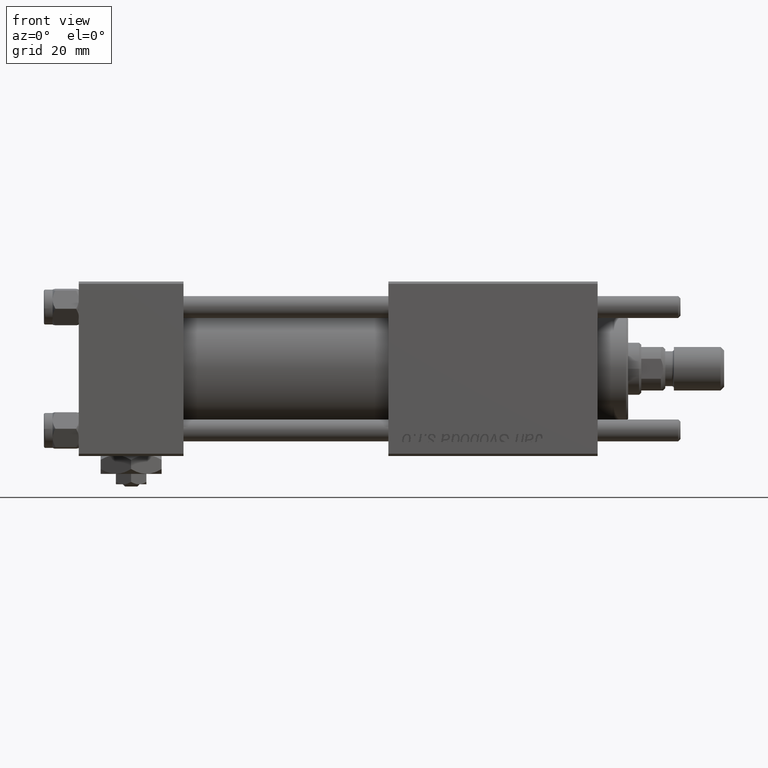
[diagram: clean part render]
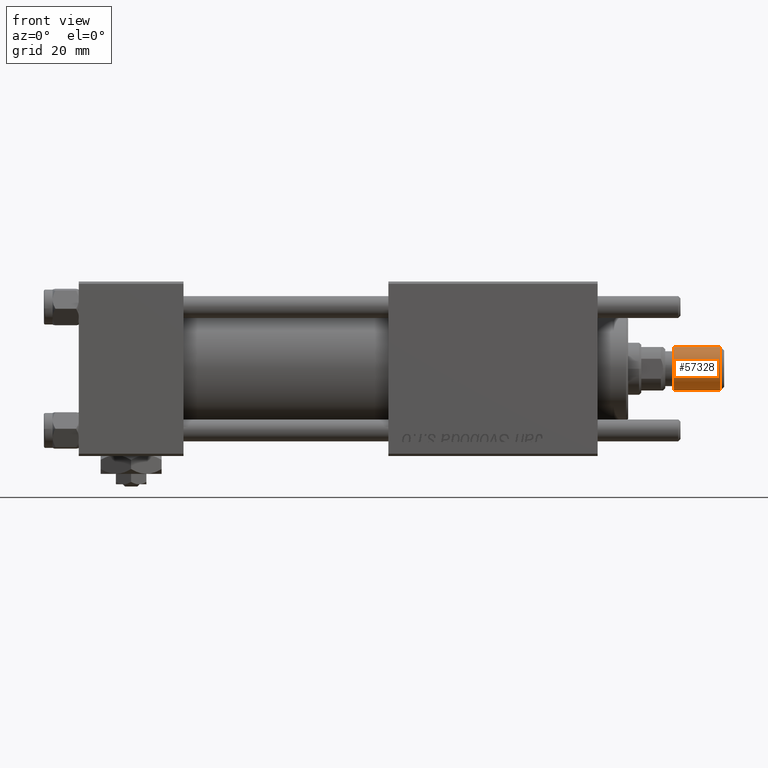
[diagram: same view with one face highlighted and labeled with its STEP entity id]
A machine part, front view. The second image highlights one B-rep face of the part: STEP entity #57328.
In plain terms, the highlighted cylindrical surface (edge-blend (fillet) strip) has radius 5 mm, axis along (1, -0, -0).
Its self-contained STEP definition (entity closure, byte-faithful):
#1119 = EDGE_CURVE ( 'NONE', #56349, #33280, #26284, .T. ) ;
#1937 = CARTESIAN_POINT ( 'NONE',  ( -5.000000000000000000, 0.000000000000000000, 0.8000000000000020428 ) ) ;
#6209 = EDGE_CURVE ( 'NONE', #15401, #14057, #33258, .T. ) ;
#6597 = VECTOR ( 'NONE', #18395, 1000.000000000000000 ) ;
#6815 = DIRECTION ( 'NONE',  ( 0.000000000000000000, 0.000000000000000000, 1.000000000000000000 ) ) ;
#8549 = LINE ( 'NONE', #45600, #6597 ) ;
#9655 = CARTESIAN_POINT ( 'NONE',  ( -5.000000000000000000, 0.000000000000000000, 11.50000000000000000 ) ) ;
#10078 = AXIS2_PLACEMENT_3D ( 'NONE', #32808, #6815, #37899 ) ;
#11149 = FACE_OUTER_BOUND ( 'NONE', #12446, .T. ) ;
#12446 = EDGE_LOOP ( 'NONE', ( #56712, #27717, #27109, #23630 ) ) ;
#14057 = VERTEX_POINT ( 'NONE', #53708 ) ;
#14696 = AXIS2_PLACEMENT_3D ( 'NONE', #16479, #48464, #52372 ) ;
#15401 = VERTEX_POINT ( 'NONE', #1937 ) ;
#15600 = CARTESIAN_POINT ( 'NONE',  ( 5.000000000000000000, 6.123233995736766282E-16, 11.50000000000000000 ) ) ;
#16479 = CARTESIAN_POINT ( 'NONE',  ( 0.000000000000000000, 0.000000000000000000, 11.50000000000000000 ) ) ;
#17201 = EDGE_CURVE ( 'NONE', #33280, #14057, #8549, .T. ) ;
#18395 = DIRECTION ( 'NONE',  ( -0.000000000000000000, -0.000000000000000000, -1.000000000000000000 ) ) ;
#21632 = DIRECTION ( 'NONE',  ( -0.000000000000000000, -0.000000000000000000, 1.000000000000000000 ) ) ;
#23630 = ORIENTED_EDGE ( 'NONE', *, *, #6209, .T. ) ;
#23740 = AXIS2_PLACEMENT_3D ( 'NONE', #35684, #21632, #39867 ) ;
#25181 = CYLINDRICAL_SURFACE ( 'NONE', #14696, 5.000000000000000000 ) ;
#26284 = CIRCLE ( 'NONE', #10078, 5.000000000000000000 ) ;
#27109 = ORIENTED_EDGE ( 'NONE', *, *, #43051, .T. ) ;
#27717 = ORIENTED_EDGE ( 'NONE', *, *, #1119, .F. ) ;
#32808 = CARTESIAN_POINT ( 'NONE',  ( 0.000000000000000000, 0.000000000000000000, 11.50000000000000000 ) ) ;
#33231 = CARTESIAN_POINT ( 'NONE',  ( -5.000000000000000000, 0.000000000000000000, 11.50000000000000000 ) ) ;
#33258 = CIRCLE ( 'NONE', #23740, 5.000000000000000000 ) ;
#33280 = VERTEX_POINT ( 'NONE', #15600 ) ;
#35684 = CARTESIAN_POINT ( 'NONE',  ( 0.000000000000000000, 0.000000000000000000, 0.8000000000000020428 ) ) ;
#37275 = VECTOR ( 'NONE', #38614, 1000.000000000000000 ) ;
#37899 = DIRECTION ( 'NONE',  ( 1.000000000000000000, 0.000000000000000000, 0.000000000000000000 ) ) ;
#38614 = DIRECTION ( 'NONE',  ( -0.000000000000000000, -0.000000000000000000, -1.000000000000000000 ) ) ;
#39867 = DIRECTION ( 'NONE',  ( 1.000000000000000000, 0.000000000000000000, 0.000000000000000000 ) ) ;
#43051 = EDGE_CURVE ( 'NONE', #56349, #15401, #46986, .T. ) ;
#45600 = CARTESIAN_POINT ( 'NONE',  ( 5.000000000000000000, 6.123233995736766282E-16, 11.50000000000000000 ) ) ;
#46986 = LINE ( 'NONE', #33231, #37275 ) ;
#48464 = DIRECTION ( 'NONE',  ( -0.000000000000000000, -0.000000000000000000, -1.000000000000000000 ) ) ;
#52372 = DIRECTION ( 'NONE',  ( -1.000000000000000000, 0.000000000000000000, 0.000000000000000000 ) ) ;
#53708 = CARTESIAN_POINT ( 'NONE',  ( 5.000000000000000000, 6.123233995736766282E-16, 0.8000000000000020428 ) ) ;
#56349 = VERTEX_POINT ( 'NONE', #9655 ) ;
#56712 = ORIENTED_EDGE ( 'NONE', *, *, #17201, .F. ) ;
#57328 = ADVANCED_FACE ( 'NONE', ( #11149 ), #25181, .T. ) ;